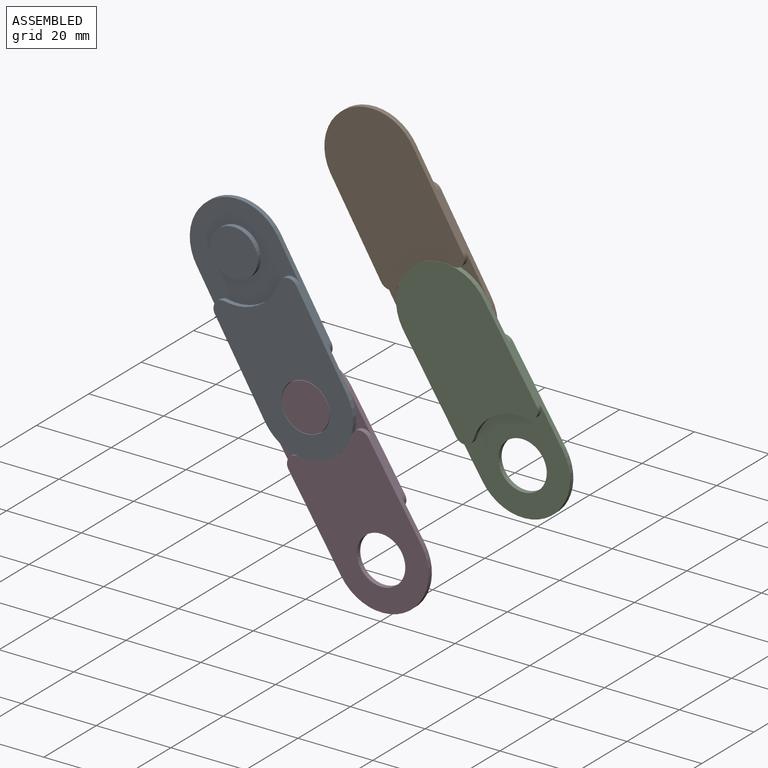
[diagram: assembled view]
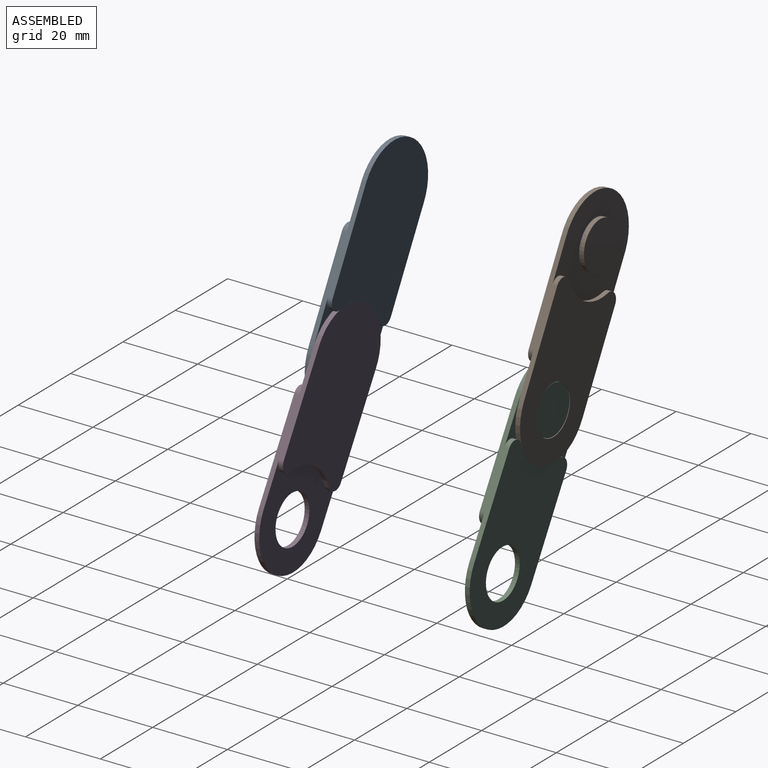
[diagram: assembled view, second angle]
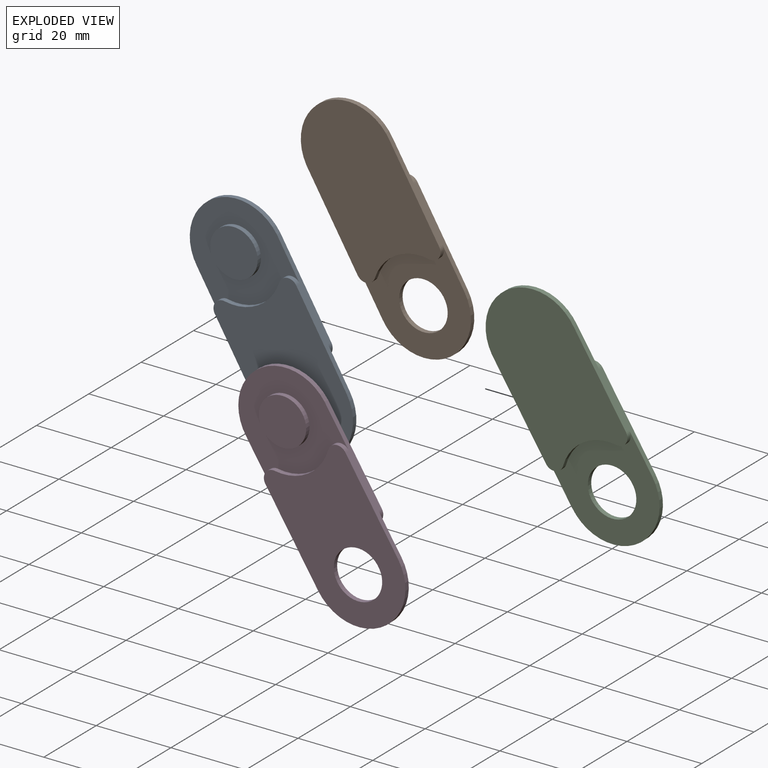
[diagram: exploded view]
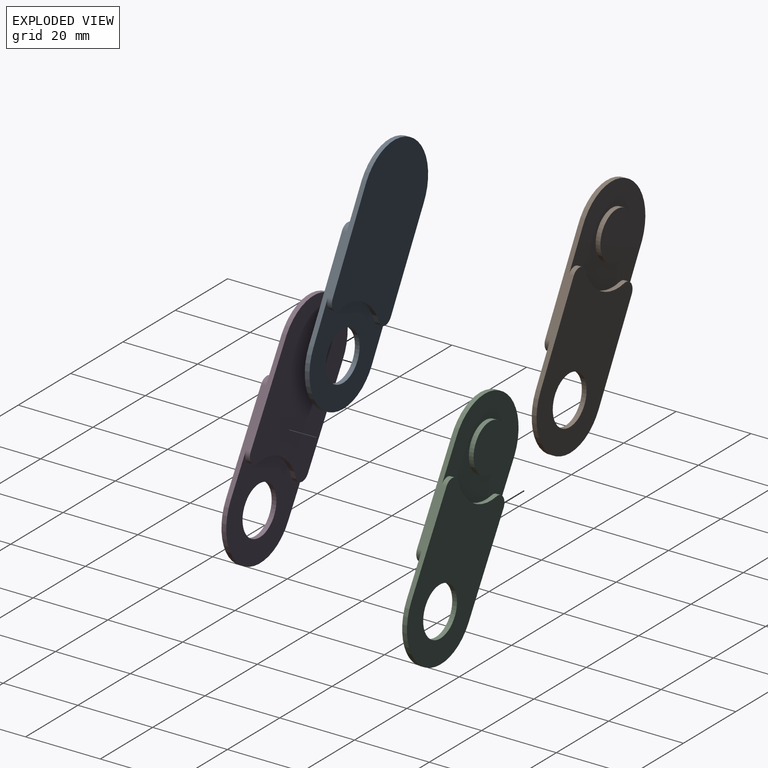
[diagram: exploded view, second angle]
ASSEMBLY  parts=4 mates=2
PART A: 17 faces, bbox 62.9x25.4x2.5 mm
  f0: plane 38.1x2.54mm, normal (0,1,0), area 67.2mm2, adj f1,f2,f3,f5,f8,f12,f13,f15
  f1: cylinder r=12.7mm len=25.39mm, axis (0,0,1), area 50.3mm2, adj f0,f2,f3,f7
  f2: plane 25.4x25.39mm, normal (0,0,1), area 402.6mm2, adj f0,f1,f4,f7,f9,f15,f16
  f3: plane 41.42x25.4mm, normal (0,0,-1), area 930.6mm2, adj f0,f1,f7,f11,f13,f14
  f4: cylinder r=12.7mm len=16.92mm, axis (0,0,-1), area 23.5mm2, adj f2,f8,f15,f16
  f5: cylinder r=12.7mm len=25.4mm, axis (0,0,-1), area 50.7mm2, adj f0,f7,f8,f12
  f6: cylinder r=6.48mm len=12.95mm, axis (0,0,-1), area 51.7mm2, adj f8,f12
  f7: plane 37.24x2.54mm, normal (0,-1,0), area 66.1mm2, adj f1,f2,f3,f5,f8,f12,f14,f16
  f8: plane 41.42x25.4mm, normal (0,0,1), area 798.9mm2, adj f0,f4,f5,f6,f7,f15,f16
  f9: cylinder r=6.35mm len=12.7mm, axis (0,0,-1), area 50.7mm2, adj f2,f10
  f10: plane 12.7x12.7mm, normal (0,0,1), area 126.7mm2, adj f9
  f11: cylinder r=12.7mm len=16.93mm, axis (0,0,-1), area 23.5mm2, adj f3,f12,f13,f14
  f12: plane 25.4x25.4mm, normal (0,0,-1), area 397.5mm2, adj f0,f5,f6,f7,f11,f13,f14
  f13: cylinder r=2.54mm len=4.23mm, axis (0,0,-1), area 7.4mm2, adj f0,f3,f11,f12
  f14: cylinder r=2.54mm len=4.23mm, axis (0,0,-1), area 7.4mm2, adj f3,f7,f11,f12
  f15: cylinder r=2.54mm len=4.23mm, axis (0,0,-1), area 7.4mm2, adj f0,f2,f4,f8
  f16: cylinder r=2.54mm len=4.23mm, axis (0,0,-1), area 7.4mm2, adj f2,f4,f7,f8
PART B: 17 faces, bbox 62.9x25.4x2.5 mm
  f0: plane 38.1x2.54mm, normal (0,1,0), area 67.2mm2, adj f1,f2,f3,f5,f8,f12,f13,f15
  f1: cylinder r=12.7mm len=25.39mm, axis (0,0,1), area 50.3mm2, adj f0,f2,f3,f7
  f2: plane 25.4x25.39mm, normal (0,0,1), area 402.6mm2, adj f0,f1,f4,f7,f9,f15,f16
  f3: plane 41.42x25.4mm, normal (0,0,-1), area 930.6mm2, adj f0,f1,f7,f11,f13,f14
  f4: cylinder r=12.7mm len=16.92mm, axis (0,0,-1), area 23.5mm2, adj f2,f8,f15,f16
  f5: cylinder r=12.7mm len=25.4mm, axis (0,0,-1), area 50.7mm2, adj f0,f7,f8,f12
  f6: cylinder r=6.48mm len=12.95mm, axis (0,0,-1), area 51.7mm2, adj f8,f12
  f7: plane 37.24x2.54mm, normal (0,-1,0), area 66.1mm2, adj f1,f2,f3,f5,f8,f12,f14,f16
  f8: plane 41.42x25.4mm, normal (0,0,1), area 798.9mm2, adj f0,f4,f5,f6,f7,f15,f16
  f9: cylinder r=6.35mm len=12.7mm, axis (0,0,-1), area 50.7mm2, adj f2,f10
  f10: plane 12.7x12.7mm, normal (0,0,1), area 126.7mm2, adj f9
  f11: cylinder r=12.7mm len=16.93mm, axis (0,0,-1), area 23.5mm2, adj f3,f12,f13,f14
  f12: plane 25.4x25.4mm, normal (0,0,-1), area 397.5mm2, adj f0,f5,f6,f7,f11,f13,f14
  f13: cylinder r=2.54mm len=4.23mm, axis (0,0,-1), area 7.4mm2, adj f0,f3,f11,f12
  f14: cylinder r=2.54mm len=4.23mm, axis (0,0,-1), area 7.4mm2, adj f3,f7,f11,f12
  f15: cylinder r=2.54mm len=4.23mm, axis (0,0,-1), area 7.4mm2, adj f0,f2,f4,f8
  f16: cylinder r=2.54mm len=4.23mm, axis (0,0,-1), area 7.4mm2, adj f2,f4,f7,f8
PART C: 17 faces, bbox 62.9x25.4x2.5 mm
  f0: plane 38.1x2.54mm, normal (0,1,0), area 67.2mm2, adj f1,f2,f3,f5,f8,f12,f13,f15
  f1: cylinder r=12.7mm len=25.39mm, axis (0,0,1), area 50.3mm2, adj f0,f2,f3,f7
  f2: plane 25.4x25.39mm, normal (0,0,1), area 402.6mm2, adj f0,f1,f4,f7,f9,f15,f16
  f3: plane 41.42x25.4mm, normal (0,0,-1), area 930.6mm2, adj f0,f1,f7,f11,f13,f14
  f4: cylinder r=12.7mm len=16.92mm, axis (0,0,-1), area 23.5mm2, adj f2,f8,f15,f16
  f5: cylinder r=12.7mm len=25.4mm, axis (0,0,-1), area 50.7mm2, adj f0,f7,f8,f12
  f6: cylinder r=6.48mm len=12.95mm, axis (0,0,-1), area 51.7mm2, adj f8,f12
  f7: plane 37.24x2.54mm, normal (0,-1,0), area 66.1mm2, adj f1,f2,f3,f5,f8,f12,f14,f16
  f8: plane 41.42x25.4mm, normal (0,0,1), area 798.9mm2, adj f0,f4,f5,f6,f7,f15,f16
  f9: cylinder r=6.35mm len=12.7mm, axis (0,0,-1), area 50.7mm2, adj f2,f10
  f10: plane 12.7x12.7mm, normal (0,0,1), area 126.7mm2, adj f9
  f11: cylinder r=12.7mm len=16.93mm, axis (0,0,-1), area 23.5mm2, adj f3,f12,f13,f14
  f12: plane 25.4x25.4mm, normal (0,0,-1), area 397.5mm2, adj f0,f5,f6,f7,f11,f13,f14
  f13: cylinder r=2.54mm len=4.23mm, axis (0,0,-1), area 7.4mm2, adj f0,f3,f11,f12
  f14: cylinder r=2.54mm len=4.23mm, axis (0,0,-1), area 7.4mm2, adj f3,f7,f11,f12
  f15: cylinder r=2.54mm len=4.23mm, axis (0,0,-1), area 7.4mm2, adj f0,f2,f4,f8
  f16: cylinder r=2.54mm len=4.23mm, axis (0,0,-1), area 7.4mm2, adj f2,f4,f7,f8
PART D: 17 faces, bbox 62.9x25.4x2.5 mm
  f0: plane 38.1x2.54mm, normal (0,1,0), area 67.2mm2, adj f1,f2,f3,f5,f8,f12,f13,f15
  f1: cylinder r=12.7mm len=25.39mm, axis (0,0,1), area 50.3mm2, adj f0,f2,f3,f7
  f2: plane 25.4x25.39mm, normal (0,0,1), area 402.6mm2, adj f0,f1,f4,f7,f9,f15,f16
  f3: plane 41.42x25.4mm, normal (0,0,-1), area 930.6mm2, adj f0,f1,f7,f11,f13,f14
  f4: cylinder r=12.7mm len=16.92mm, axis (0,0,-1), area 23.5mm2, adj f2,f8,f15,f16
  f5: cylinder r=12.7mm len=25.4mm, axis (0,0,-1), area 50.7mm2, adj f0,f7,f8,f12
  f6: cylinder r=6.48mm len=12.95mm, axis (0,0,-1), area 51.7mm2, adj f8,f12
  f7: plane 37.24x2.54mm, normal (0,-1,0), area 66.1mm2, adj f1,f2,f3,f5,f8,f12,f14,f16
  f8: plane 41.42x25.4mm, normal (0,0,1), area 798.9mm2, adj f0,f4,f5,f6,f7,f15,f16
  f9: cylinder r=6.35mm len=12.7mm, axis (0,0,-1), area 50.7mm2, adj f2,f10
  f10: plane 12.7x12.7mm, normal (0,0,1), area 126.7mm2, adj f9
  f11: cylinder r=12.7mm len=16.93mm, axis (0,0,-1), area 23.5mm2, adj f3,f12,f13,f14
  f12: plane 25.4x25.4mm, normal (0,0,-1), area 397.5mm2, adj f0,f5,f6,f7,f11,f13,f14
  f13: cylinder r=2.54mm len=4.23mm, axis (0,0,-1), area 7.4mm2, adj f0,f3,f11,f12
  f14: cylinder r=2.54mm len=4.23mm, axis (0,0,-1), area 7.4mm2, adj f3,f7,f11,f12
  f15: cylinder r=2.54mm len=4.23mm, axis (0,0,-1), area 7.4mm2, adj f0,f2,f4,f8
  f16: cylinder r=2.54mm len=4.23mm, axis (0,0,-1), area 7.4mm2, adj f2,f4,f7,f8
PLACE A rot(axis=(0.78,0.45,-0.44),105.1deg) t=(0.46,22.57,-1.83)mm
PLACE B rot(axis=(-0.77,0.44,0.45),103.8deg) t=(80.4,73.69,46.49)mm
PLACE C rot(axis=(-0.78,0.43,0.44),102.9deg) t=(64.45,73.18,72.63)mm
PLACE D rot(axis=(0.79,0.44,-0.43),104.3deg) t=(-13.94,22.22,21.71)mm
MATE cylindrical B.f5 <-> C.f1  axis (0,1,0.02) through (19.16,76.55,20.82)mm
MATE cylindrical A.f5 <-> D.f1  axis (0,-1,-0.02) through (20.22,19.71,19.41)mm
